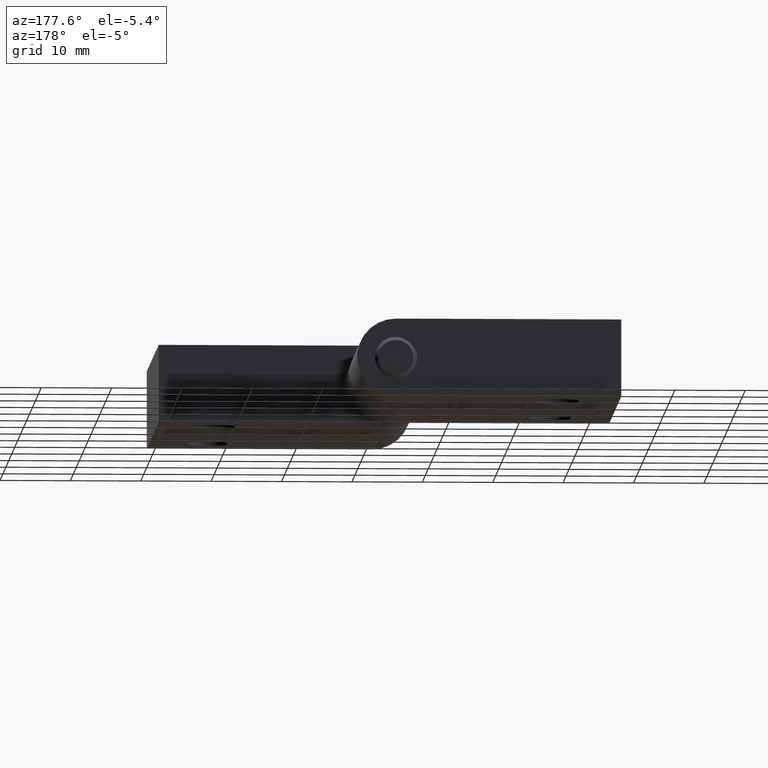
[diagram: clean part render]
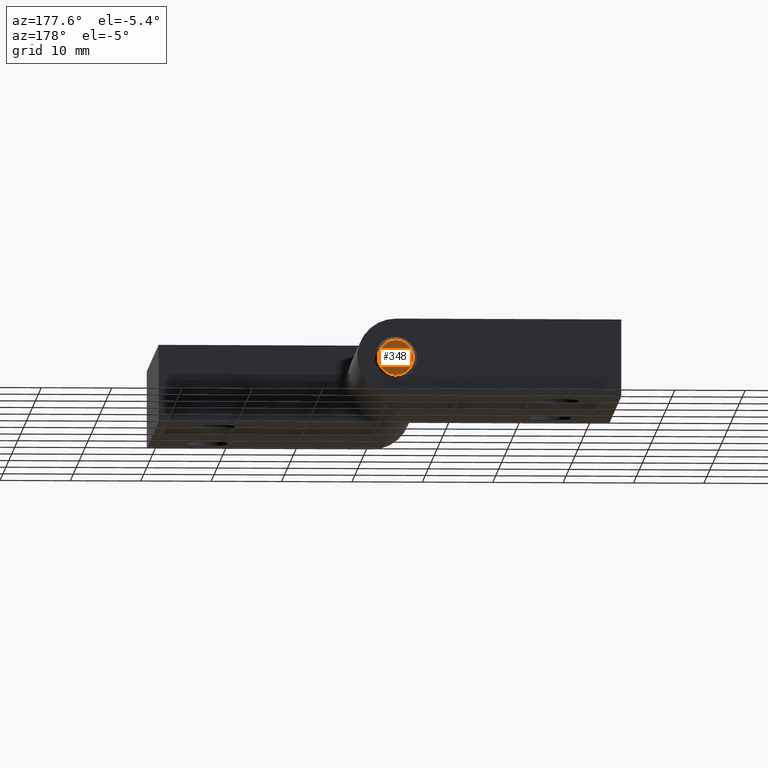
[diagram: same view with one face highlighted and labeled with its STEP entity id]
A machine part, auxiliary view. The second image highlights one B-rep face of the part: STEP entity #348.
In plain terms, the highlighted planar face has unit normal (0, 1, 0).
Its self-contained STEP definition (entity closure, byte-faithful):
#59=PLANE('',#480);
#79=FACE_OUTER_BOUND('',#109,.T.);
#109=EDGE_LOOP('',(#309));
#171=CIRCLE('',#479,2.5);
#197=VERTEX_POINT('',#687);
#234=EDGE_CURVE('',#197,#197,#171,.T.);
#309=ORIENTED_EDGE('',*,*,#234,.F.);
#348=ADVANCED_FACE('',(#79),#59,.T.);
#479=AXIS2_PLACEMENT_3D('',#688,#581,#582);
#480=AXIS2_PLACEMENT_3D('',#690,#584,#585);
#581=DIRECTION('center_axis',(0.,0.,-1.));
#582=DIRECTION('ref_axis',(-1.,0.,0.));
#584=DIRECTION('center_axis',(0.,0.,1.));
#585=DIRECTION('ref_axis',(1.,0.,0.));
#687=CARTESIAN_POINT('',(2.5,-3.06161699786838E-16,80.));
#688=CARTESIAN_POINT('Origin',(0.,0.,80.));
#690=CARTESIAN_POINT('Origin',(-1.84813812287733E-16,-7.70988211545247E-17,
80.));